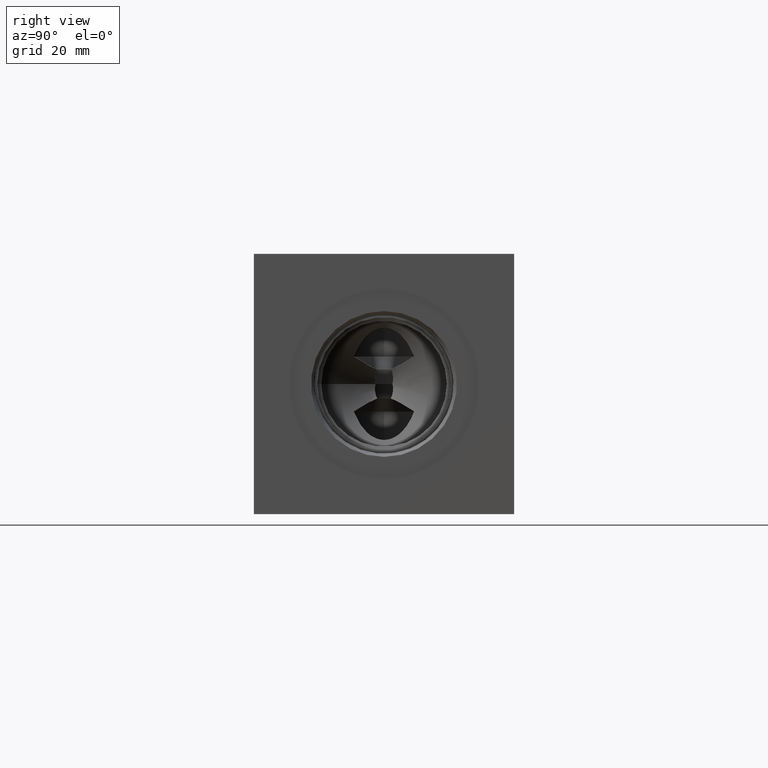
[diagram: clean part render]
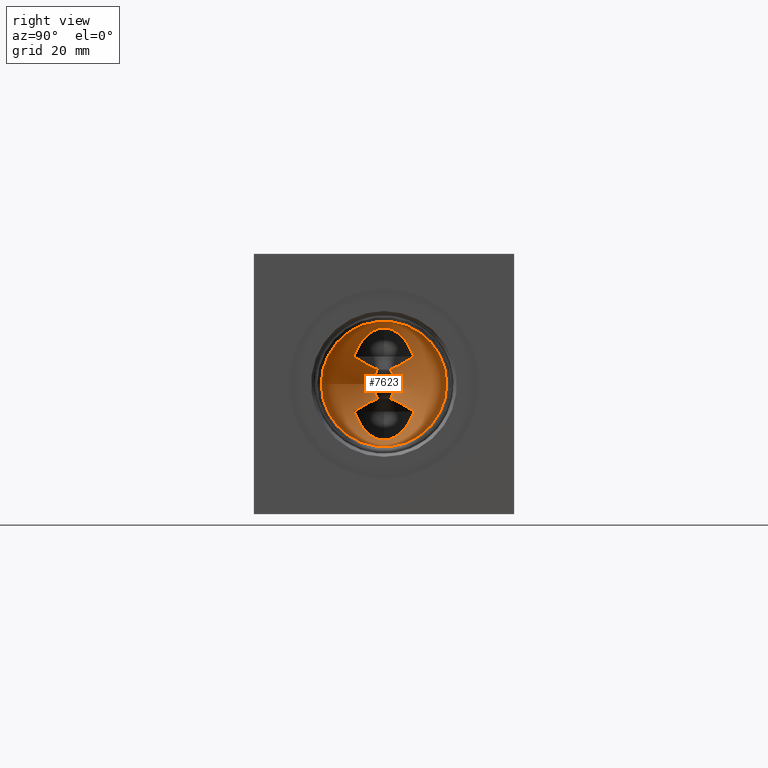
[diagram: same view with one face highlighted and labeled with its STEP entity id]
A machine part, right view. The second image highlights one B-rep face of the part: STEP entity #7623.
In plain terms, the highlighted conical surface has half-angle 60 deg.
Its self-contained STEP definition (entity closure, byte-faithful):
#25=CONICAL_SURFACE('',#7942,10.7188,1.0471975511966);
#101=CIRCLE('',#7943,21.4376);
#102=CIRCLE('',#7944,21.4376);
#468=B_SPLINE_CURVE_WITH_KNOTS('',3,(#12818,#12819,#12820,#12821,#12822,
#12823,#12824,#12825,#12826,#12827,#12828,#12829,#12830,#12831,#12832,#12833,
#12834,#12835,#12836,#12837,#12838,#12839),.UNSPECIFIED.,.F.,.F.,(4,2,2,
2,2,2,2,2,2,2,4),(5.65804614751937,5.86799814580522,6.20600852675304,6.54401890770086,
6.83306145733417,7.12210400696748,7.4111465566008,7.70018910623411,8.03819948718193,
8.37620986812974,8.5861618664156),.UNSPECIFIED.);
#469=B_SPLINE_CURVE_WITH_KNOTS('',3,(#12843,#12844,#12845,#12846,#12847,
#12848,#12849,#12850),.UNSPECIFIED.,.F.,.F.,(4,2,2,4),(3.82502520633001,
3.98994951458755,4.43327723843061,5.02336071878949),.UNSPECIFIED.);
#470=B_SPLINE_CURVE_WITH_KNOTS('',3,(#12853,#12854,#12855,#12856,#12857,
#12858,#12859,#12860),.UNSPECIFIED.,.F.,.F.,(4,2,2,4),(2.06988286269949,
2.65996634305837,3.10329406690143,3.26821837515897),.UNSPECIFIED.);
#479=B_SPLINE_CURVE_WITH_KNOTS('',3,(#12967,#12968,#12969,#12970,#12971,
#12972,#12973,#12974,#12975,#12976),.UNSPECIFIED.,.F.,.F.,(4,2,2,2,4),(0.963727082277168,
1.02786096428718,1.18927710483686,1.35069324538654,1.47250445857944),
 .UNSPECIFIED.);
#480=B_SPLINE_CURVE_WITH_KNOTS('',3,(#12978,#12979,#12980,#12981,#12982,
#12983,#12984,#12985),.UNSPECIFIED.,.F.,.F.,(4,2,2,4),(3.82502520633001,
3.98994951458755,4.43327723843061,5.02336071878949),.UNSPECIFIED.);
#481=B_SPLINE_CURVE_WITH_KNOTS('',3,(#12987,#12988,#12989,#12990,#12991,
#12992,#12993,#12994,#12995,#12996,#12997,#12998,#12999,#13000,#13001,#13002,
#13003,#13004,#13005,#13006,#13007,#13008),.UNSPECIFIED.,.F.,.F.,(4,2,2,
2,2,2,2,2,2,2,4),(5.65804614751937,5.86799814580523,6.20600852675304,6.54401890770086,
6.83306145733417,7.12210400696748,7.4111465566008,7.70018910623411,8.03819948718193,
8.37620986812975,8.5861618664156),.UNSPECIFIED.);
#482=B_SPLINE_CURVE_WITH_KNOTS('',3,(#13010,#13011,#13012,#13013,#13014,
#13015,#13016,#13017),.UNSPECIFIED.,.F.,.F.,(4,2,2,4),(2.06988286269949,
2.65996634305836,3.10329406690142,3.26821837515897),.UNSPECIFIED.);
#483=B_SPLINE_CURVE_WITH_KNOTS('',3,(#13019,#13020,#13021,#13022,#13023,
#13024,#13025,#13026),.UNSPECIFIED.,.F.,.F.,(4,2,2,4),(0.,0.161416140549679,
0.322832281099357,0.386966163109373),.UNSPECIFIED.);
#484=B_SPLINE_CURVE_WITH_KNOTS('',3,(#13028,#13029,#13030,#13031),
 .UNSPECIFIED.,.F.,.F.,(4,4),(2.24367840025132,2.36548961344423),
 .UNSPECIFIED.);
#485=B_SPLINE_CURVE_WITH_KNOTS('',3,(#13032,#13033,#13034,#13035,#13036,
#13037,#13038,#13039,#13040,#13041),.UNSPECIFIED.,.F.,.F.,(4,2,2,2,4),(3.32921669572139,
3.3933505777314,3.55476671828108,3.71618285883076,3.83799407205367),
 .UNSPECIFIED.);
#486=B_SPLINE_CURVE_WITH_KNOTS('',3,(#13042,#13043,#13044,#13045,#13046,
#13047,#13048,#13049,#13050,#13051,#13052),.UNSPECIFIED.,.F.,.F.,(4,3,2,
2,4),(2.24367840022132,2.36548961344423,2.5269057539939,2.68832189454358,
2.75245577655359),.UNSPECIFIED.);
#904=FACE_OUTER_BOUND('',#1326,.T.);
#1326=EDGE_LOOP('',(#6381,#6382,#6383,#6384,#6385,#6386,#6387,#6388,#6389,
#6390,#6391,#6392,#6393,#6394,#6395));
#2075=LINE('',#12965,#2789);
#2789=VECTOR('',#9248,10.7188);
#3437=VERTEX_POINT('',#12815);
#3438=VERTEX_POINT('',#12817);
#3439=VERTEX_POINT('',#12842);
#3440=VERTEX_POINT('',#12851);
#3450=VERTEX_POINT('',#12961);
#3451=VERTEX_POINT('',#12962);
#3452=VERTEX_POINT('',#12964);
#3453=VERTEX_POINT('',#12966);
#3454=VERTEX_POINT('',#12977);
#3455=VERTEX_POINT('',#12986);
#3456=VERTEX_POINT('',#13009);
#3457=VERTEX_POINT('',#13018);
#3458=VERTEX_POINT('',#13027);
#4438=EDGE_CURVE('',#3437,#3438,#468,.T.);
#4440=EDGE_CURVE('',#3439,#3438,#469,.T.);
#4442=EDGE_CURVE('',#3437,#3440,#470,.T.);
#4454=EDGE_CURVE('',#3450,#3451,#101,.T.);
#4455=EDGE_CURVE('',#3451,#3452,#2075,.T.);
#4456=EDGE_CURVE('',#3453,#3452,#479,.T.);
#4457=EDGE_CURVE('',#3453,#3454,#480,.T.);
#4458=EDGE_CURVE('',#3455,#3454,#481,.T.);
#4459=EDGE_CURVE('',#3455,#3456,#482,.T.);
#4460=EDGE_CURVE('',#3457,#3456,#483,.T.);
#4461=EDGE_CURVE('',#3458,#3457,#484,.T.);
#4462=EDGE_CURVE('',#3439,#3458,#485,.T.);
#4463=EDGE_CURVE('',#3452,#3440,#486,.T.);
#4464=EDGE_CURVE('',#3451,#3450,#102,.T.);
#6381=ORIENTED_EDGE('',*,*,#4454,.T.);
#6382=ORIENTED_EDGE('',*,*,#4455,.T.);
#6383=ORIENTED_EDGE('',*,*,#4456,.F.);
#6384=ORIENTED_EDGE('',*,*,#4457,.T.);
#6385=ORIENTED_EDGE('',*,*,#4458,.F.);
#6386=ORIENTED_EDGE('',*,*,#4459,.T.);
#6387=ORIENTED_EDGE('',*,*,#4460,.F.);
#6388=ORIENTED_EDGE('',*,*,#4461,.F.);
#6389=ORIENTED_EDGE('',*,*,#4462,.F.);
#6390=ORIENTED_EDGE('',*,*,#4440,.T.);
#6391=ORIENTED_EDGE('',*,*,#4438,.F.);
#6392=ORIENTED_EDGE('',*,*,#4442,.T.);
#6393=ORIENTED_EDGE('',*,*,#4463,.F.);
#6394=ORIENTED_EDGE('',*,*,#4455,.F.);
#6395=ORIENTED_EDGE('',*,*,#4464,.T.);
#7623=ADVANCED_FACE('',(#904),#25,.F.);
#7942=AXIS2_PLACEMENT_3D('',#12960,#9244,#9245);
#7943=AXIS2_PLACEMENT_3D('',#12963,#9246,#9247);
#7944=AXIS2_PLACEMENT_3D('',#13053,#9249,#9250);
#9244=DIRECTION('center_axis',(1.,0.,0.));
#9245=DIRECTION('ref_axis',(0.,1.,0.));
#9246=DIRECTION('center_axis',(1.,0.,0.));
#9247=DIRECTION('ref_axis',(0.,1.,0.));
#9248=DIRECTION('',(-0.5,0.866025403784439,1.06057523872491E-16));
#9249=DIRECTION('center_axis',(1.,0.,0.));
#9250=DIRECTION('ref_axis',(0.,1.,0.));
#12815=CARTESIAN_POINT('',(174.793426336425,34.1781466430005,35.05432));
#12817=CARTESIAN_POINT('',(174.793426336425,54.7218533569995,35.05432));
#12818=CARTESIAN_POINT('Ctrl Pts',(174.793426336425,34.1781466430005,35.05432));
#12819=CARTESIAN_POINT('Ctrl Pts',(174.951550062569,34.425117298077,34.3785346806464));
#12820=CARTESIAN_POINT('Ctrl Pts',(175.116989787121,34.696266766045,33.7284409813775));
#12821=CARTESIAN_POINT('Ctrl Pts',(175.549319485886,35.45147240054,32.1225118202071));
#12822=CARTESIAN_POINT('Ctrl Pts',(175.857713525749,36.0361179420129,31.0764675994804));
#12823=CARTESIAN_POINT('Ctrl Pts',(176.467366535572,37.4099570315539,29.1369300481693));
#12824=CARTESIAN_POINT('Ctrl Pts',(176.766971028151,38.2011968043169,28.2443670805117));
#12825=CARTESIAN_POINT('Ctrl Pts',(177.225559534201,39.7479545641076,26.9154297060636));
#12826=CARTESIAN_POINT('Ctrl Pts',(177.432153813471,40.6064739022558,26.3358280554379));
#12827=CARTESIAN_POINT('Ctrl Pts',(177.720829432664,42.4743463732189,25.5361425730146));
#12828=CARTESIAN_POINT('Ctrl Pts',(177.8,43.4865248345556,25.3216220981751));
#12829=CARTESIAN_POINT('Ctrl Pts',(177.8,45.4134751654444,25.3216220981751));
#12830=CARTESIAN_POINT('Ctrl Pts',(177.720829432664,46.4256536267811,25.5361425730146));
#12831=CARTESIAN_POINT('Ctrl Pts',(177.432153813471,48.2935260977442,26.3358280554379));
#12832=CARTESIAN_POINT('Ctrl Pts',(177.225559534201,49.1520454358923,26.9154297060636));
#12833=CARTESIAN_POINT('Ctrl Pts',(176.766971028151,50.6988031956831,28.2443670805117));
#12834=CARTESIAN_POINT('Ctrl Pts',(176.467366535572,51.4900429684461,29.1369300481693));
#12835=CARTESIAN_POINT('Ctrl Pts',(175.857713525749,52.8638820579871,31.0764675994804));
#12836=CARTESIAN_POINT('Ctrl Pts',(175.549319485886,53.44852759946,32.1225118202071));
#12837=CARTESIAN_POINT('Ctrl Pts',(175.116989787121,54.203733233955,33.7284409813775));
#12838=CARTESIAN_POINT('Ctrl Pts',(174.951550062569,54.4748827019229,34.3785346806464));
#12839=CARTESIAN_POINT('Ctrl Pts',(174.793426336425,54.7218533569995,35.05432));
#12842=CARTESIAN_POINT('',(169.913326337598,46.7210926666118,39.4756670375238));
#12843=CARTESIAN_POINT('Ctrl Pts',(169.913326357653,46.7210926495124,39.4756670136075));
#12844=CARTESIAN_POINT('Ctrl Pts',(170.07907534427,47.1091147879284,39.3372314896286));
#12845=CARTESIAN_POINT('Ctrl Pts',(170.262053323613,47.4788121740249,39.1823226404211));
#12846=CARTESIAN_POINT('Ctrl Pts',(170.976194817041,48.8311902286342,38.5688149099059));
#12847=CARTESIAN_POINT('Ctrl Pts',(171.558077161744,49.775663494659,38.0523326244484));
#12848=CARTESIAN_POINT('Ctrl Pts',(173.001430951373,52.0508770858947,36.7398680286058));
#12849=CARTESIAN_POINT('Ctrl Pts',(173.879204584774,53.3679846772634,35.9203147896928));
#12850=CARTESIAN_POINT('Ctrl Pts',(174.793426336425,54.7218533569995,35.05432));
#12851=CARTESIAN_POINT('',(169.913326337598,42.1789073333882,39.4756670375238));
#12853=CARTESIAN_POINT('Ctrl Pts',(174.793426336425,34.1781466430005,35.05432));
#12854=CARTESIAN_POINT('Ctrl Pts',(173.879204584774,35.5320153227366,35.9203147896928));
#12855=CARTESIAN_POINT('Ctrl Pts',(173.001430951373,36.8491229141053,36.7398680286058));
#12856=CARTESIAN_POINT('Ctrl Pts',(171.558077161744,39.124336505341,38.0523326244484));
#12857=CARTESIAN_POINT('Ctrl Pts',(170.976194817041,40.0688097713657,38.5688149099059));
#12858=CARTESIAN_POINT('Ctrl Pts',(170.262053323613,41.4211878259751,39.182322640421));
#12859=CARTESIAN_POINT('Ctrl Pts',(170.07907534427,41.7908852120716,39.3372314896286));
#12860=CARTESIAN_POINT('Ctrl Pts',(169.913326357653,42.1789073504876,39.4756670136075));
#12960=CARTESIAN_POINT('Origin',(172.94472793461,44.45,44.45));
#12961=CARTESIAN_POINT('',(179.13323,65.8876,44.45));
#12962=CARTESIAN_POINT('',(179.13323,23.0124,44.45));
#12963=CARTESIAN_POINT('Origin',(179.13323,44.45,44.45));
#12964=CARTESIAN_POINT('',(168.398548991521,41.6054129096705,44.4500000001603));
#12965=CARTESIAN_POINT('',(172.94472793461,33.7312,44.45));
#12966=CARTESIAN_POINT('',(169.913326337598,42.1789073333881,49.4243329624762));
#12967=CARTESIAN_POINT('Ctrl Pts',(169.913326343767,42.1789073321332,49.4243329515727));
#12968=CARTESIAN_POINT('Ctrl Pts',(169.839427141478,42.0709986743044,49.2343593027165));
#12969=CARTESIAN_POINT('Ctrl Pts',(169.765570823208,41.9770744525635,49.0412291525988));
#12970=CARTESIAN_POINT('Ctrl Pts',(169.52047945511,41.6966529809768,48.3881231169951));
#12971=CARTESIAN_POINT('Ctrl Pts',(169.328785384367,41.5383288928663,47.8542414949241));
#12972=CARTESIAN_POINT('Ctrl Pts',(168.969617716743,41.3539396607787,46.7574267557703));
#12973=CARTESIAN_POINT('Ctrl Pts',(168.802975326754,41.3284125883791,46.1941312444813));
#12974=CARTESIAN_POINT('Ctrl Pts',(168.56961773638,41.400873336848,45.2822091921764));
#12975=CARTESIAN_POINT('Ctrl Pts',(168.474167887063,41.4744371406645,44.8589227757729));
#12976=CARTESIAN_POINT('Ctrl Pts',(168.398548991563,41.6054129096583,44.4500000001718));
#12977=CARTESIAN_POINT('',(174.793426336425,34.1781466430005,53.84568));
#12978=CARTESIAN_POINT('Ctrl Pts',(169.913326357653,42.1789073504876,49.4243329863925));
#12979=CARTESIAN_POINT('Ctrl Pts',(170.07907534427,41.7908852120716,49.5627685103714));
#12980=CARTESIAN_POINT('Ctrl Pts',(170.262053323613,41.4211878259751,49.717677359579));
#12981=CARTESIAN_POINT('Ctrl Pts',(170.976194817041,40.0688097713658,50.3311850900941));
#12982=CARTESIAN_POINT('Ctrl Pts',(171.558077161744,39.124336505341,50.8476673755516));
#12983=CARTESIAN_POINT('Ctrl Pts',(173.001430951373,36.8491229141053,52.1601319713942));
#12984=CARTESIAN_POINT('Ctrl Pts',(173.879204584774,35.5320153227367,52.9796852103072));
#12985=CARTESIAN_POINT('Ctrl Pts',(174.793426336425,34.1781466430005,53.84568));
#12986=CARTESIAN_POINT('',(174.793426336425,54.7218533569995,53.84568));
#12987=CARTESIAN_POINT('Ctrl Pts',(174.793426336425,54.7218533569995,53.84568));
#12988=CARTESIAN_POINT('Ctrl Pts',(174.951550062569,54.474882701923,54.5214653193536));
#12989=CARTESIAN_POINT('Ctrl Pts',(175.116989787121,54.203733233955,55.1715590186225));
#12990=CARTESIAN_POINT('Ctrl Pts',(175.549319485886,53.44852759946,56.7774881797929));
#12991=CARTESIAN_POINT('Ctrl Pts',(175.857713525749,52.8638820579871,57.8235324005196));
#12992=CARTESIAN_POINT('Ctrl Pts',(176.467366535572,51.4900429684461,59.7630699518307));
#12993=CARTESIAN_POINT('Ctrl Pts',(176.766971028151,50.6988031956831,60.6556329194883));
#12994=CARTESIAN_POINT('Ctrl Pts',(177.225559534201,49.1520454358924,61.9845702939364));
#12995=CARTESIAN_POINT('Ctrl Pts',(177.432153813471,48.2935260977442,62.5641719445621));
#12996=CARTESIAN_POINT('Ctrl Pts',(177.720829432664,46.4256536267811,63.3638574269854));
#12997=CARTESIAN_POINT('Ctrl Pts',(177.8,45.4134751654444,63.5783779018249));
#12998=CARTESIAN_POINT('Ctrl Pts',(177.8,43.4865248345556,63.5783779018249));
#12999=CARTESIAN_POINT('Ctrl Pts',(177.720829432664,42.4743463732189,63.3638574269854));
#13000=CARTESIAN_POINT('Ctrl Pts',(177.432153813471,40.6064739022558,62.5641719445621));
#13001=CARTESIAN_POINT('Ctrl Pts',(177.225559534201,39.7479545641076,61.9845702939364));
#13002=CARTESIAN_POINT('Ctrl Pts',(176.766971028151,38.2011968043169,60.6556329194883));
#13003=CARTESIAN_POINT('Ctrl Pts',(176.467366535572,37.4099570315539,59.7630699518307));
#13004=CARTESIAN_POINT('Ctrl Pts',(175.857713525749,36.0361179420129,57.8235324005196));
#13005=CARTESIAN_POINT('Ctrl Pts',(175.549319485886,35.45147240054,56.7774881797929));
#13006=CARTESIAN_POINT('Ctrl Pts',(175.116989787121,34.696266766045,55.1715590186225));
#13007=CARTESIAN_POINT('Ctrl Pts',(174.951550062569,34.425117298077,54.5214653193536));
#13008=CARTESIAN_POINT('Ctrl Pts',(174.793426336425,34.1781466430005,53.84568));
#13009=CARTESIAN_POINT('',(169.913326337598,46.7210926666118,49.4243329624762));
#13010=CARTESIAN_POINT('Ctrl Pts',(174.793426336425,54.7218533569995,53.84568));
#13011=CARTESIAN_POINT('Ctrl Pts',(173.879204584774,53.3679846772634,52.9796852103072));
#13012=CARTESIAN_POINT('Ctrl Pts',(173.001430951373,52.0508770858947,52.1601319713942));
#13013=CARTESIAN_POINT('Ctrl Pts',(171.558077161744,49.775663494659,50.8476673755516));
#13014=CARTESIAN_POINT('Ctrl Pts',(170.976194817041,48.8311902286343,50.3311850900941));
#13015=CARTESIAN_POINT('Ctrl Pts',(170.262053323613,47.4788121740249,49.7176773595789));
#13016=CARTESIAN_POINT('Ctrl Pts',(170.07907534427,47.1091147879284,49.5627685103714));
#13017=CARTESIAN_POINT('Ctrl Pts',(169.913326357653,46.7210926495124,49.4243329863925));
#13018=CARTESIAN_POINT('',(168.669980822133,47.5302907847075,45.6744111813585));
#13019=CARTESIAN_POINT('Ctrl Pts',(168.669980822133,47.5302907847075,45.6744111813585));
#13020=CARTESIAN_POINT('Ctrl Pts',(168.802975326754,47.5715874116209,46.1941312444812));
#13021=CARTESIAN_POINT('Ctrl Pts',(168.969617716743,47.5460603392213,46.7574267557702));
#13022=CARTESIAN_POINT('Ctrl Pts',(169.328785384367,47.3616711071337,47.8542414949241));
#13023=CARTESIAN_POINT('Ctrl Pts',(169.52047945511,47.2033470190232,48.388123116995));
#13024=CARTESIAN_POINT('Ctrl Pts',(169.765570823208,46.9229255474365,49.0412291525988));
#13025=CARTESIAN_POINT('Ctrl Pts',(169.839427141478,46.8290013256956,49.2343593027165));
#13026=CARTESIAN_POINT('Ctrl Pts',(169.913326343767,46.7210926678668,49.4243329515727));
#13027=CARTESIAN_POINT('',(168.398548991521,47.2945870903295,44.4500000001603));
#13028=CARTESIAN_POINT('Ctrl Pts',(168.398548991563,47.2945870903417,44.4500000001718));
#13029=CARTESIAN_POINT('Ctrl Pts',(168.474167887063,47.4255628593355,44.8589227757729));
#13030=CARTESIAN_POINT('Ctrl Pts',(168.56961773638,47.499126663152,45.2822091921764));
#13031=CARTESIAN_POINT('Ctrl Pts',(168.669980822133,47.5302907847075,45.6744111813584));
#13032=CARTESIAN_POINT('Ctrl Pts',(169.913326343767,46.7210926678668,39.4756670484273));
#13033=CARTESIAN_POINT('Ctrl Pts',(169.839427141478,46.8290013256956,39.6656406972835));
#13034=CARTESIAN_POINT('Ctrl Pts',(169.765570823208,46.9229255474365,39.8587708474012));
#13035=CARTESIAN_POINT('Ctrl Pts',(169.52047945511,47.2033470190232,40.511876883005));
#13036=CARTESIAN_POINT('Ctrl Pts',(169.328785384367,47.3616711071337,41.0457585050759));
#13037=CARTESIAN_POINT('Ctrl Pts',(168.969617716743,47.5460603392213,42.1425732442298));
#13038=CARTESIAN_POINT('Ctrl Pts',(168.802975326754,47.5715874116209,42.7058687555188));
#13039=CARTESIAN_POINT('Ctrl Pts',(168.569617736355,47.4991266631443,43.6177908079203));
#13040=CARTESIAN_POINT('Ctrl Pts',(168.474167887016,47.4255628592984,44.0410772244356));
#13041=CARTESIAN_POINT('Ctrl Pts',(168.398548991507,47.2945870902449,44.4500000001304));
#13042=CARTESIAN_POINT('Ctrl Pts',(168.398548991507,41.6054129097551,44.4500000001304));
#13043=CARTESIAN_POINT('Ctrl Pts',(168.474167887016,41.4744371407016,44.0410772244355));
#13044=CARTESIAN_POINT('Ctrl Pts',(168.569617736355,41.4008733368557,43.6177908079203));
#13045=CARTESIAN_POINT('Ctrl Pts',(168.669980822133,41.3697092152925,43.2255888186416));
#13046=CARTESIAN_POINT('Ctrl Pts',(168.802975326754,41.3284125883791,42.7058687555188));
#13047=CARTESIAN_POINT('Ctrl Pts',(168.969617716743,41.3539396607787,42.1425732442298));
#13048=CARTESIAN_POINT('Ctrl Pts',(169.328785384367,41.5383288928663,41.0457585050759));
#13049=CARTESIAN_POINT('Ctrl Pts',(169.52047945511,41.6966529809768,40.511876883005));
#13050=CARTESIAN_POINT('Ctrl Pts',(169.765570823208,41.9770744525635,39.8587708474013));
#13051=CARTESIAN_POINT('Ctrl Pts',(169.839427141478,42.0709986743044,39.6656406972835));
#13052=CARTESIAN_POINT('Ctrl Pts',(169.913326343767,42.1789073321332,39.4756670484274));
#13053=CARTESIAN_POINT('Origin',(179.13323,44.45,44.45));